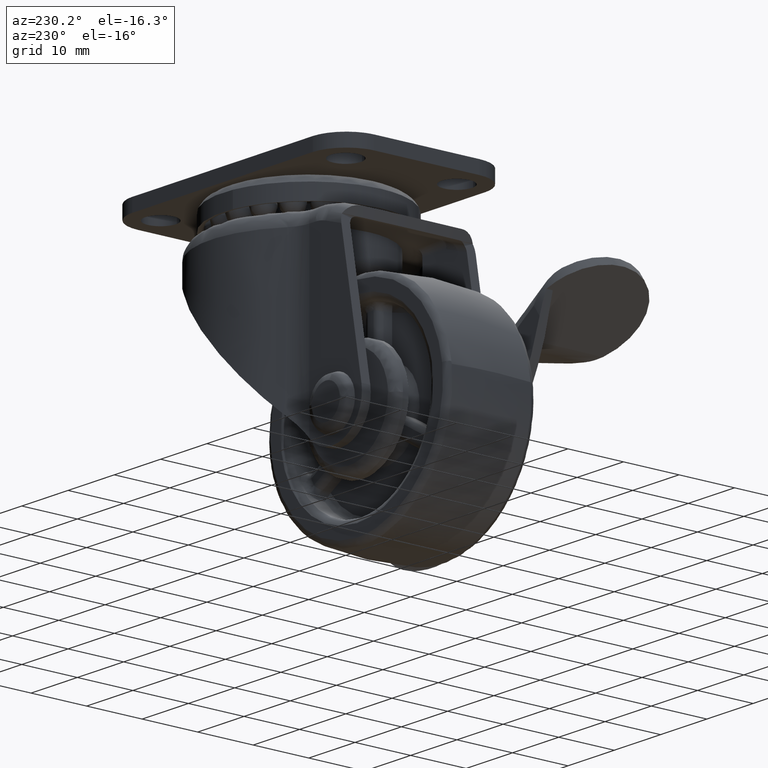
[diagram: clean part render]
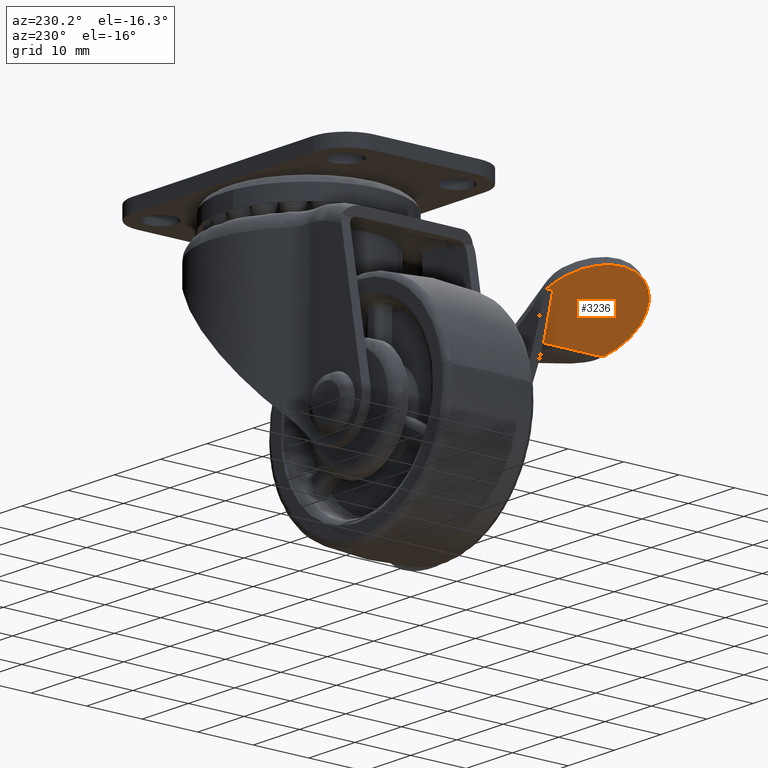
[diagram: same view with one face highlighted and labeled with its STEP entity id]
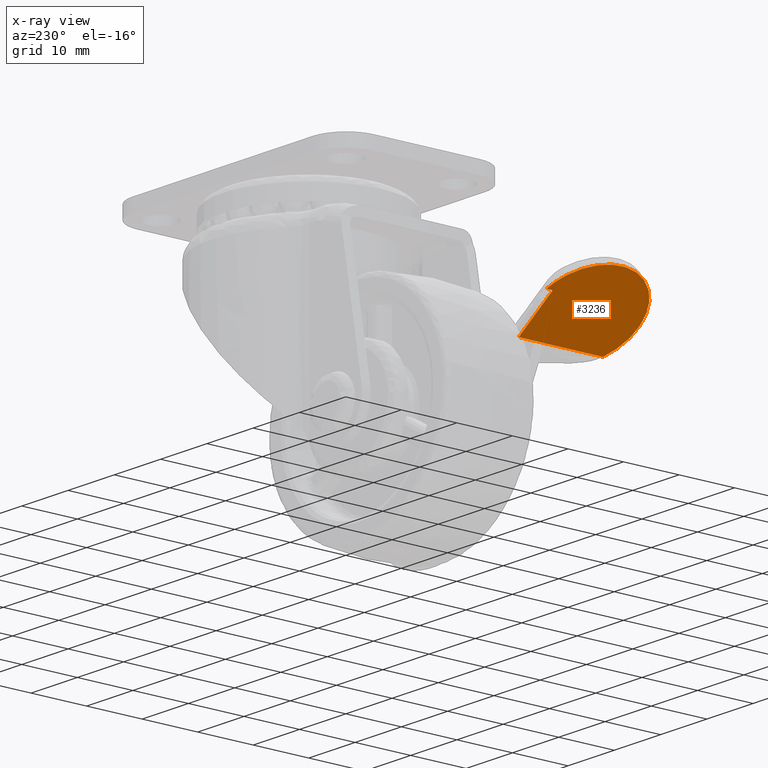
[diagram: x-ray of the same camera — body ghosted, the highlighted face saturated]
A machine part, auxiliary view. The second image highlights one B-rep face of the part: STEP entity #3236.
The next image is the same camera in x-ray: the body ghosted, the highlighted face saturated — about 0% of this face is hidden behind the body in this view.
In plain terms, the highlighted face is a freeform B-spline surface patch.
Its self-contained STEP definition (entity closure, byte-faithful):
#2554=CARTESIAN_POINT('',(-23.328268003658749,-12.560868906107199,5.098923204763490));
#2555=VERTEX_POINT('',#2554);
#2565=CARTESIAN_POINT('',(-14.356809648833259,-28.925724514616348,5.099239558543160));
#2566=VERTEX_POINT('',#2565);
#2567=CARTESIAN_POINT('',(-14.356809648833259,-28.925724514616320,5.099239558543097));
#2568=CARTESIAN_POINT('',(-19.224769311598994,-32.944914054150885,5.099067903347512));
#2569=CARTESIAN_POINT('',(-24.815903465028189,-30.014020894826231,5.098870747394476));
#2570=CARTESIAN_POINT('',(-30.407037618457398,-27.083127735501574,5.098673591441440));
#2571=CARTESIAN_POINT('',(-29.870907879410250,-20.793176961773082,5.098692496580674));
#2572=CARTESIAN_POINT('',(-29.334778140363113,-14.503226188044589,5.098711401719909));
#2573=CARTESIAN_POINT('',(-23.328268003658749,-12.560868906107199,5.098923204763490));
#2581=(BOUNDED_CURVE()B_SPLINE_CURVE(2,(#2567,#2568,#2569,#2570,#2571,#2572,#2573),.UNSPECIFIED.,.F.,.U.)B_SPLINE_CURVE_WITH_KNOTS((3,2,2,3),(0.0,0.333333333333333,0.666666666666667,1.0),.UNSPECIFIED.)CURVE()GEOMETRIC_REPRESENTATION_ITEM()RATIONAL_B_SPLINE_CURVE((1.0,0.832881693250441,1.0,0.832881693250441,1.0,0.832881693250441,1.0))REPRESENTATION_ITEM(''));
#2582=EDGE_CURVE('',#2566,#2555,#2581,.T.);
#3190=CARTESIAN_POINT('',(-14.356809648833259,-13.699999999999999,5.099239558543170));
#3191=VERTEX_POINT('',#3190);
#3192=CARTESIAN_POINT('',(-14.356809648833259,-28.925724514616348,5.099239558543160));
#3193=CARTESIAN_POINT('',(-14.356809648833259,-13.699999999999999,5.099239558543170));
#3194=QUASI_UNIFORM_CURVE('',1,(#3192,#3193),.UNSPECIFIED.,.F.,.U.);
#3195=EDGE_CURVE('',#2566,#3191,#3194,.T.);
#3215=CARTESIAN_POINT('',(-13.580412909615401,-32.025086661652587,5.099266936036698));
#3216=CARTESIAN_POINT('',(-30.676682610381619,-32.025086661652587,5.098664083153238));
#3217=CARTESIAN_POINT('',(-13.580412909615401,-11.634885092964829,5.099266936036698));
#3218=CARTESIAN_POINT('',(-30.676682610381619,-11.634885092964829,5.098664083153238));
#3219=B_SPLINE_SURFACE_WITH_KNOTS('',1,1,((#3215,#3217),(#3216,#3218)),.UNSPECIFIED.,.F.,.F.,.U.,(2,2),(2,2),(0.0,17.096269711395191),(0.0,20.390201568687761),.UNSPECIFIED.);
#3220=ORIENTED_EDGE('',*,*,#2582,.T.);
#3221=CARTESIAN_POINT('',(-23.328268003658749,-13.699999999999999,5.098923204763490));
#3222=VERTEX_POINT('',#3221);
#3223=CARTESIAN_POINT('',(-23.328268003658749,-13.699999999999999,5.098923204763490));
#3224=CARTESIAN_POINT('',(-23.328268003658749,-12.560868906107199,5.098923204763490));
#3225=QUASI_UNIFORM_CURVE('',1,(#3223,#3224),.UNSPECIFIED.,.F.,.U.);
#3226=EDGE_CURVE('',#3222,#2555,#3225,.T.);
#3227=ORIENTED_EDGE('',*,*,#3226,.F.);
#3228=CARTESIAN_POINT('',(-23.328268003658749,-13.699999999999999,5.098923204763490));
#3229=CARTESIAN_POINT('',(-14.356809648833259,-13.699999999999999,5.099239558543170));
#3230=QUASI_UNIFORM_CURVE('',1,(#3228,#3229),.UNSPECIFIED.,.F.,.U.);
#3231=EDGE_CURVE('',#3222,#3191,#3230,.T.);
#3232=ORIENTED_EDGE('',*,*,#3231,.T.);
#3233=ORIENTED_EDGE('',*,*,#3195,.F.);
#3234=EDGE_LOOP('',(#3220,#3227,#3232,#3233));
#3235=FACE_OUTER_BOUND('',#3234,.T.);
#3236=ADVANCED_FACE('',(#3235),#3219,.T.);